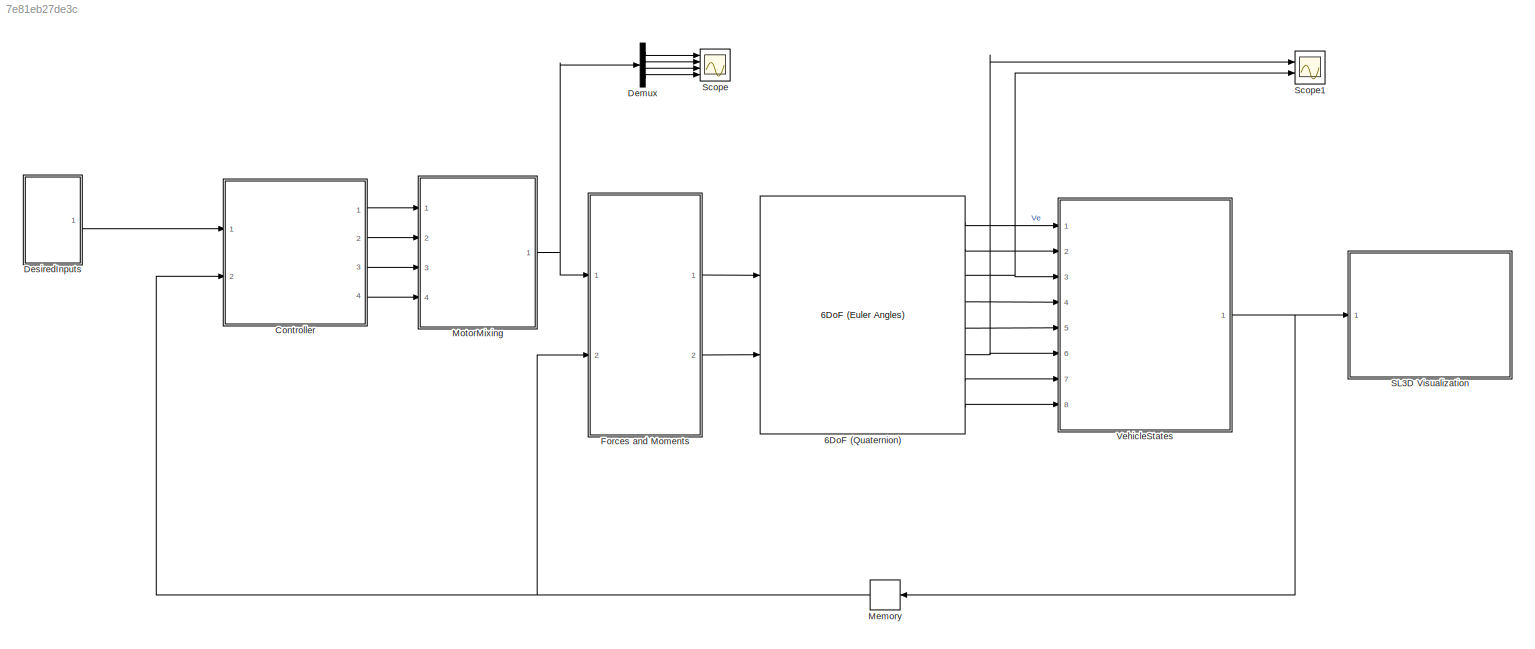
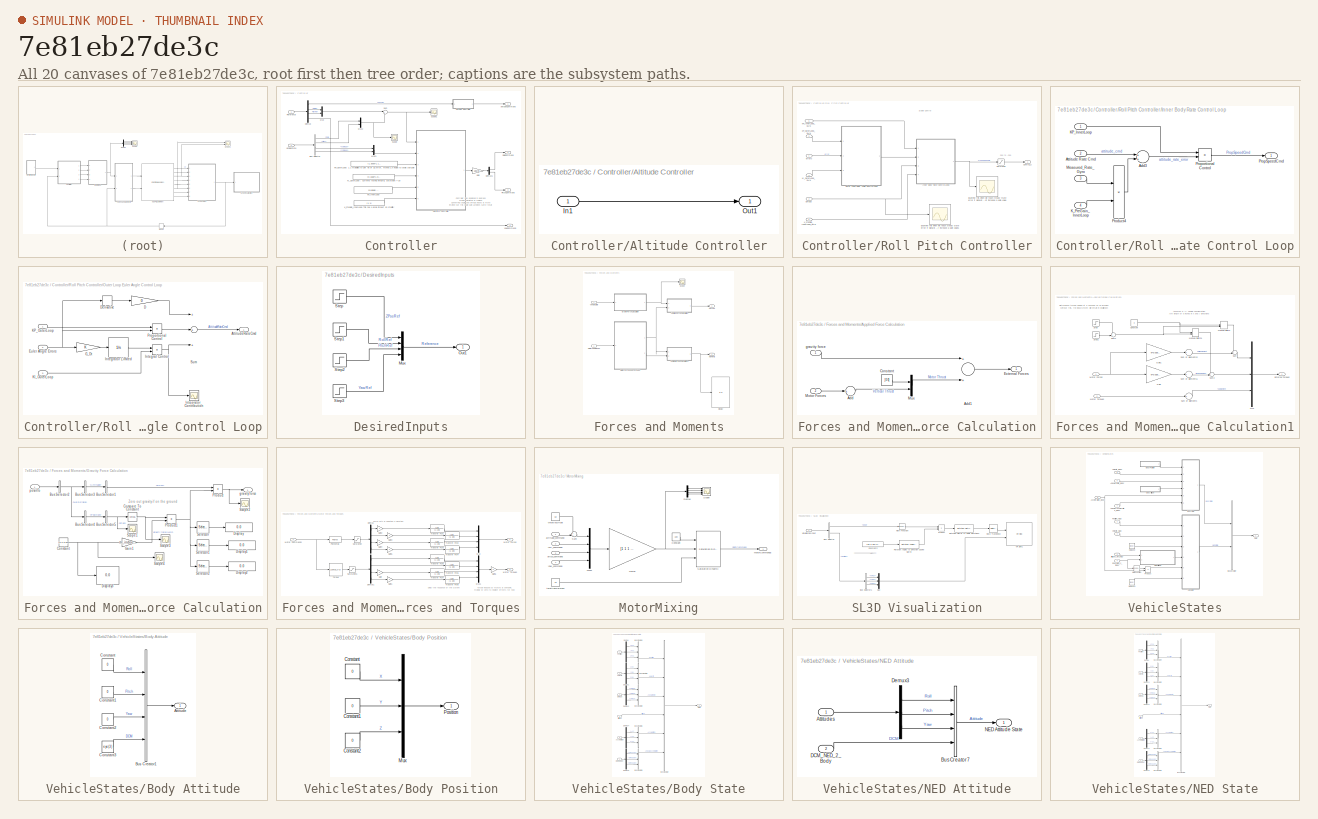
[diagram: thumbnail index - all 20 canvases of the model, root first then tree order]
MODEL slx_7e81eb27de3c
KIND model
CONFIG InitFcn = load SimpleDroneData
BLOCK [Reference] 6DoF (Quaternion)  REF=aerolibobsolete/6DoF (Euler Angles)
  Ports = [2, 8]
  SourceBlock = aerolibobsolete/6DoF (Euler Angles)
  SourceType = 6DoF EoM (Body Axis)
  Vm_0 = [0 0 0]
  eul_0 = [0 0 0]
  inertia = MomentInertiaTensor
  inertia_e = eye(3)
  inertia_f = eye(3)
  k_quat = 1.0
  mass_0 = Mass
  mass_e = 0
  mass_f = 0
  mtype = Fixed
  pm_0 = [0 0 0]
  rep = Quaternion
  units = Metric (MKS)
  xme_0 = [0 0 0]
BLOCK [SubSystem] Controller
  Ports = [2, 4]
  RequestExecContextInheritance = off
BLOCK [SubSystem] Controller/Altitude Controller
  Ports = [1, 1]
  RequestExecContextInheritance = off
BLOCK [Inport] Controller/Altitude Controller/In1
  IconDisplay = Port number
BLOCK [Outport] Controller/Altitude Controller/Out1
  IconDisplay = Port number
BLOCK [Outport] Controller/AltitudeCommand
  IconDisplay = Port number
BLOCK [BusSelector] Controller/Bus Selector
  OutputSignals = NEDState.Attitude.Roll,NEDState.Attitude.Pitch,BodyState.AngularRate.xOmega,BodyState.AngularRate.yOmega
  Ports = [1, 4]
BLOCK [Demux] Controller/Demux
  DisplayOption = bar
  Ports = [1, 4]
BLOCK [Demux] Controller/Demux1
  DisplayOption = bar
  Outputs = 2
  Ports = [1, 2]
BLOCK [Gain] Controller/Gain
  Gain = 180/pi
  OutDataTypeStr = Inherit: Inherit via internal rule
  ParamDataTypeStr = Inherit: Inherit via internal rule
  SaturateOnIntegerOverflow = off
BLOCK [Constant] Controller/KI_OuterLoop : Currently testing integral, saturation +-30
  Value = [0.1688*1.0    0.1688]*6
BLOCK [Constant] Controller/KP_InnerLoop
  Value = [0.8100    0.8100]*0.27
BLOCK [Constant] Controller/KP_OuterLoop: 1.1 multiplied to get rid of SS error, moved 2.6 inside to avoid yaw gain
  Value = [1.3500*1.1*3.6 1.3500*1.1*2.6 ]
BLOCK [Constant] Controller/K_PreGain_InnerLoop This has a large impact on stability
  Value = [1 1]
BLOCK [Mux] Controller/Mux
  DisplayOption = bar
  Inputs = 2
  Ports = [2, 1]
BLOCK [Mux] Controller/Mux2
  DisplayOption = bar
  Inputs = 2
  Ports = [2, 1]
BLOCK [Mux] Controller/Mux3
  DisplayOption = bar
  Inputs = 2
  Ports = [2, 1]
BLOCK [Outport] Controller/PitchCommand
  IconDisplay = Port number
  Port = 3
BLOCK [Inport] Controller/Reference
  IconDisplay = Port number
BLOCK [SubSystem] Controller/Roll Pitch Controller
  Ports = [6, 1]
  RequestExecContextInheritance = off
  TreatAsAtomicUnit = on
BLOCK [Outport] Controller/Roll Pitch Controller/Control_U
  IconDisplay = Port number
BLOCK [Scope] Controller/Roll Pitch Controller/Examine this when we reach steady state error if signal is abs(0)<1 then we need ot increase a gain value
  DataFormat = StructureWithTime
  Floating = off
  LimitDataPoints = off
  NumInputPorts = 1
  Ports = [1]
  SampleTime = 0
  SaveName = ScopeData7
  ShowLegends = off
  YMax = 4
  YMin = -6
BLOCK [Scope] Controller/Roll Pitch Controller/Examine this when we reach steady state error if signal is abs(0)<1 then we need ot increase a gain value1
  DataFormat = StructureWithTime
  Floating = off
  LimitDataPoints = off
  NumInputPorts = 1
  Ports = [1]
  SampleTime = 0
  ShowLegends = off
  YMax = 40
  YMin = -3.62958e-15
BLOCK [SubSystem] Controller/Roll Pitch Controller/Inner Body Rate Control Loop
  Ports = [4, 1]
  RequestExecContextInheritance = off
BLOCK [Sum] Controller/Roll Pitch Controller/Inner Body Rate Control Loop/Add3
  InputSameDT = off
  OutDataTypeStr = Inherit: Inherit via internal rule
  Ports = [2, 1]
  SaturateOnIntegerOverflow = off
BLOCK [Inport] Controller/Roll Pitch Controller/Inner Body Rate Control Loop/Attitude Rate Cmd
  IconDisplay = Port number
  Port = 2
BLOCK [Inport] Controller/Roll Pitch Controller/Inner Body Rate Control Loop/KP_InnerLoop
  IconDisplay = Port number
BLOCK [Inport] Controller/Roll Pitch Controller/Inner Body Rate Control Loop/K_PreGain_InnerLoop
  IconDisplay = Port number
  Port = 4
BLOCK [Inport] Controller/Roll Pitch Controller/Inner Body Rate Control Loop/Measured_Rate_Gyro
  IconDisplay = Port number
  Port = 3
BLOCK [Product] Controller/Roll Pitch Controller/Inner Body Rate Control Loop/Product4
  InputSameDT = off
  OutDataTypeStr = Inherit: Inherit via internal rule
  Ports = [2, 1]
  SaturateOnIntegerOverflow = off
BLOCK [Outport] Controller/Roll Pitch Controller/Inner Body Rate Control Loop/PropSpeedCmd
  IconDisplay = Port number
BLOCK [Product] Controller/Roll Pitch Controller/Inner Body Rate Control Loop/Proportional Control
  InputSameDT = off
  OutDataTypeStr = Inherit: Inherit via internal rule
  Ports = [2, 1]
  SaturateOnIntegerOverflow = off
BLOCK [Inport] Controller/Roll Pitch Controller/KI_OuterLoop_GAIN
  IconDisplay = Port number
  Port = 4
BLOCK [Inport] Controller/Roll Pitch Controller/KP_InnerLoop_GAIN
  IconDisplay = Port number
  Port = 5
BLOCK [Inport] Controller/Roll Pitch Controller/KP_OuterLoop_GAIN
  IconDisplay = Port number
  Port = 3
BLOCK [Inport] Controller/Roll Pitch Controller/K_PreGain_InnerLoop_GAIN
  IconDisplay = Port number
  Port = 6
BLOCK [Inport] Controller/Roll Pitch Controller/Omega
  IconDisplay = Port number
  Port = 2
BLOCK [SubSystem] Controller/Roll Pitch Controller/Outer Loop Euler Angle Control Loop
  Ports = [3, 1]
  RequestExecContextInheritance = off
BLOCK [Outport] Controller/Roll Pitch Controller/Outer Loop Euler Angle Control Loop/AttitudeRateCmd
  IconDisplay = Port number
BLOCK [Gain] Controller/Roll Pitch Controller/Outer Loop Euler Angle Control Loop/D
  Gain = 0
  OutDataTypeStr = Inherit: Inherit via internal rule
  ParamDataTypeStr = Inherit: Inherit via internal rule
  SaturateOnIntegerOverflow = off
BLOCK [Derivative] Controller/Roll Pitch Controller/Outer Loop Euler Angle Control Loop/Derivative
BLOCK [Inport] Controller/Roll Pitch Controller/Outer Loop Euler Angle Control Loop/Euler Angle Errors
  IconDisplay = Port number
  Port = 2
BLOCK [Gain] Controller/Roll Pitch Controller/Outer Loop Euler Angle Control Loop/G_Dt
  OutDataTypeStr = double
  ParamDataTypeStr = Inherit: Inherit via internal rule
  SaturateOnIntegerOverflow = off
BLOCK [Product] Controller/Roll Pitch Controller/Outer Loop Euler Angle Control Loop/Integral Control
  InputSameDT = off
  OutDataTypeStr = Inherit: Inherit via internal rule
  Ports = [2, 1]
  SaturateOnIntegerOverflow = off
BLOCK [Integrator] Controller/Roll Pitch Controller/Outer Loop Euler Angle Control Loop/Integrator Limited
  LimitOutput = on
  LowerSaturationLimit = [-30 -30]
  Ports = [1, 1]
  UpperSaturationLimit = [30 30]
BLOCK [Scope] Controller/Roll Pitch Controller/Outer Loop Euler Angle Control Loop/Integrator_Contribution
  DataFormat = StructureWithTime
  Floating = off
  LimitDataPoints = off
  NumInputPorts = 1
  Ports = [1]
  SampleTime = 0
  SaveName = ScopeData6
  ShowLegends = off
  YMax = 37.5
  YMin = 0
BLOCK [Inport] Controller/Roll Pitch Controller/Outer Loop Euler Angle Control Loop/KI_OuterLoop
  IconDisplay = Port number
  Port = 3
BLOCK [Inport] Controller/Roll Pitch Controller/Outer Loop Euler Angle Control Loop/KP_OuterLoop
  IconDisplay = Port number
BLOCK [Product] Controller/Roll Pitch Controller/Outer Loop Euler Angle Control Loop/Proportional Control
  InputSameDT = off
  OutDataTypeStr = Inherit: Inherit via internal rule
  Ports = [2, 1]
  SaturateOnIntegerOverflow = off
BLOCK [Sum] Controller/Roll Pitch Controller/Outer Loop Euler Angle Control Loop/Sum
  InputSameDT = off
  Inputs = +++
  OutDataTypeStr = Inherit: Inherit via internal rule
  Ports = [3, 1]
  SaturateOnIntegerOverflow = off
BLOCK [Saturate] Controller/Roll Pitch Controller/Saturation
  AttributesFormatString = %<LowerLimit>\nto\n%<UpperLimit>
  InputPortMap = u0
  LowerLimit = -250
  OutDataTypeStr = Inherit: Inherit via back propagation
  Ports = [1, 1]
  UpperLimit = 250
BLOCK [Inport] Controller/Roll Pitch Controller/errors
  IconDisplay = Port number
BLOCK [Outport] Controller/RollCommand
  IconDisplay = Port number
  Port = 2
BLOCK [Scope] Controller/Scope
  Floating = off
  LimitDataPoints = off
  NumInputPorts = 1
  Ports = [1]
  SaveName = ScopeData3
  ShowLegends = off
BLOCK [Scope] Controller/Scope1
  Floating = off
  LimitDataPoints = off
  NumInputPorts = 1
  Ports = [1]
  SaveName = ScopeData11
  ShowLegends = off
BLOCK [Sum] Controller/Sum
  IconShape = round
  InputSameDT = off
  Inputs = |++
  OutDataTypeStr = Inherit: Inherit via internal rule
  Ports = [2, 1]
  SaturateOnIntegerOverflow = off
BLOCK [Inport] Controller/VehicleState
  IconDisplay = Port number
  Port = 2
BLOCK [Outport] Controller/YawCommand
  IconDisplay = Port number
  Port = 4
BLOCK [Demux] Demux
  DisplayOption = bar
  Ports = [1, 4]
BLOCK [SubSystem] DesiredInputs
  Ports = [0, 1]
  RequestExecContextInheritance = off
BLOCK [Mux] DesiredInputs/Mux
  DisplayOption = bar
  Ports = [4, 1]
BLOCK [Outport] DesiredInputs/Out1
  IconDisplay = Port number
BLOCK [Step] DesiredInputs/Step
  After = -1
  SampleTime = 0
  Time = 3
BLOCK [Step] DesiredInputs/Step1
  After = 0
  SampleTime = 0
  Time = 2
BLOCK [Step] DesiredInputs/Step2
  After = 0
  SampleTime = 0
  Time = 5
BLOCK [Step] DesiredInputs/Step3
  After = 0
  SampleTime = 0
  Time = 5
BLOCK [SubSystem] Forces and Moments
  Ports = [2, 2]
  RequestExecContextInheritance = off
  TreatAsAtomicUnit = on
BLOCK [SubSystem] Forces and Moments/Applied Force Calculation
  Ports = [2, 1]
  RequestExecContextInheritance = off
BLOCK [Sum] Forces and Moments/Applied Force Calculation/Add
  InputSameDT = off
  Inputs = +
  OutDataTypeStr = Inherit: Inherit via internal rule
  Ports = [1, 1]
  SaturateOnIntegerOverflow = off
BLOCK [Sum] Forces and Moments/Applied Force Calculation/Add1
  InputSameDT = off
  OutDataTypeStr = Inherit: Inherit via internal rule
  Ports = [2, 1]
  SaturateOnIntegerOverflow = off
BLOCK [Constant] Forces and Moments/Applied Force Calculation/Constant
  Value = [0 0]
BLOCK [Outport] Forces and Moments/Applied Force Calculation/External Forces
  IconDisplay = Port number
BLOCK [Inport] Forces and Moments/Applied Force Calculation/Motor Forces
  IconDisplay = Port number
  Port = 2
BLOCK [Mux] Forces and Moments/Applied Force Calculation/Mux
  DisplayOption = bar
  Inputs = 2
  Ports = [2, 1]
BLOCK [Inport] Forces and Moments/Applied Force Calculation/gravity force
  IconDisplay = Port number
BLOCK [SubSystem] Forces and Moments/Applied torque Calculation1
  Ports = [2, 1]
  RequestExecContextInheritance = off
BLOCK [Constant] Forces and Moments/Applied torque Calculation1/Constant
  Value = 0
BLOCK [Outport] Forces and Moments/Applied torque Calculation1/External Torques
  IconDisplay = Port number
BLOCK [Gain] Forces and Moments/Applied torque Calculation1/Gain
  Gain = 5*0.0254*[1 1 -1 -1]
  OutDataTypeStr = Inherit: Inherit via internal rule
  ParamDataTypeStr = Inherit: Inherit via internal rule
  SaturateOnIntegerOverflow = off
BLOCK [Gain] Forces and Moments/Applied torque Calculation1/Gain1
  Gain = 5*0.0254*[1 -1 -1 1]
  OutDataTypeStr = Inherit: Inherit via internal rule
  ParamDataTypeStr = Inherit: Inherit via internal rule
  SaturateOnIntegerOverflow = off
BLOCK [ManualSwitch] Forces and Moments/Applied torque Calculation1/Manual Switch
  CurrentSetting = 0
BLOCK [ManualSwitch] Forces and Moments/Applied torque Calculation1/Manual Switch1
  CurrentSetting = 0
BLOCK [Inport] Forces and Moments/Applied torque Calculation1/Motor Forces
  IconDisplay = Port number
BLOCK [Inport] Forces and Moments/Applied torque Calculation1/Motor Torques
  IconDisplay = Port number
  Port = 2
BLOCK [Mux] Forces and Moments/Applied torque Calculation1/Mux
  DisplayOption = bar
  Inputs = 3
  Ports = [3, 1]
BLOCK [Step] Forces and Moments/Applied torque Calculation1/Step
  SampleTime = 0
  Time = 5
BLOCK [Step] Forces and Moments/Applied torque Calculation1/Step1
  After = -1
  SampleTime = 0
  Time = 5.01
BLOCK [Sum] Forces and Moments/Applied torque Calculation1/Sum
  IconShape = round
  InputSameDT = off
  Inputs = ++|
  OutDataTypeStr = Inherit: Inherit via internal rule
  Ports = [2, 1]
  SaturateOnIntegerOverflow = off
BLOCK [Sum] Forces and Moments/Applied torque Calculation1/Sum of Elements
  InputSameDT = off
  Inputs = +
  OutDataTypeStr = Inherit: Inherit via internal rule
  Ports = [1, 1]
  SaturateOnIntegerOverflow = off
BLOCK [Sum] Forces and Moments/Applied torque Calculation1/Sum of Elements1
  InputSameDT = off
  Inputs = +
  OutDataTypeStr = Inherit: Inherit via internal rule
  Ports = [1, 1]
  SaturateOnIntegerOverflow = off
BLOCK [Sum] Forces and Moments/Applied torque Calculation1/Sum of Elements2
  InputSameDT = off
  Inputs = +
  OutDataTypeStr = Inherit: Inherit via internal rule
  Ports = [1, 1]
  SaturateOnIntegerOverflow = off
BLOCK [Sum] Forces and Moments/Applied torque Calculation1/Sum1
  IconShape = round
  InputSameDT = off
  Inputs = ++|
  OutDataTypeStr = Inherit: Inherit via internal rule
  Ports = [2, 1]
  SaturateOnIntegerOverflow = off
BLOCK [Sum] Forces and Moments/Applied torque Calculation1/Sum2
  IconShape = round
  InputSameDT = off
  Inputs = ++|
  OutDataTypeStr = Inherit: Inherit via internal rule
  Ports = [2, 1]
  SaturateOnIntegerOverflow = off
BLOCK [Display] Forces and Moments/Display
  Decimation = 1
  Ports = [1]
BLOCK [Outport] Forces and Moments/Forces
  IconDisplay = Port number
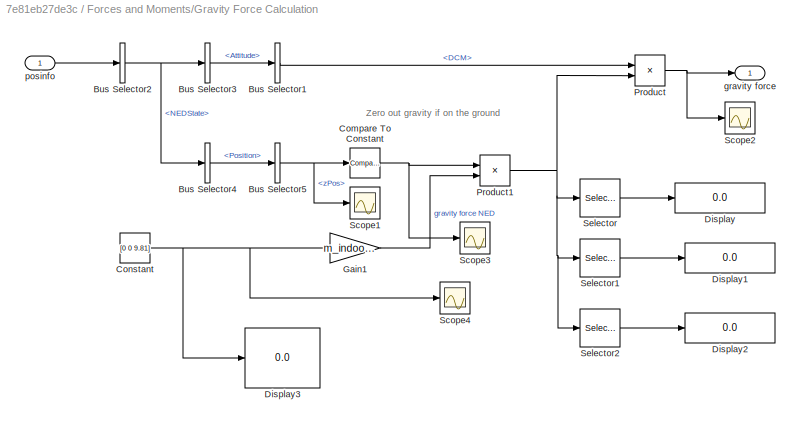
BLOCK [SubSystem] Forces and Moments/Gravity Force Calculation
  Ports = [1, 1]
  RequestExecContextInheritance = off
BLOCK [BusSelector] Forces and Moments/Gravity Force Calculation/Bus Selector1
  OutputSignals = DCM
  Ports = [1, 1]
BLOCK [BusSelector] Forces and Moments/Gravity Force Calculation/Bus Selector2
  OutputSignals = NEDState
  Ports = [1, 1]
BLOCK [BusSelector] Forces and Moments/Gravity Force Calculation/Bus Selector3
  OutputSignals = Attitude
  Ports = [1, 1]
BLOCK [BusSelector] Forces and Moments/Gravity Force Calculation/Bus Selector4
  OutputSignals = Position
  Ports = [1, 1]
BLOCK [BusSelector] Forces and Moments/Gravity Force Calculation/Bus Selector5
  OutputSignals = zPos
  Ports = [1, 1]
BLOCK [Reference] Forces and Moments/Gravity Force Calculation/Compare To Constant  REF=simulink/Logic and Bit
Operations/Compare
To Constant
  OutDataTypeStr = boolean
  Ports = [1, 1]
  SourceBlock = simulink/Logic and Bit\nOperations/Compare\nTo Constant
  SourceType = Compare To Constant
  ZeroCross = on
  const = 0.0
  relop = <
BLOCK [Constant] Forces and Moments/Gravity Force Calculation/Constant
  Value = [0 0 9.81]
BLOCK [Display] Forces and Moments/Gravity Force Calculation/Display
  Decimation = 1
  Ports = [1]
BLOCK [Display] Forces and Moments/Gravity Force Calculation/Display1
  Decimation = 1
  Ports = [1]
BLOCK [Display] Forces and Moments/Gravity Force Calculation/Display2
  Decimation = 1
  Ports = [1]
BLOCK [Display] Forces and Moments/Gravity Force Calculation/Display3
  Decimation = 1
  Ports = [1]
BLOCK [Gain] Forces and Moments/Gravity Force Calculation/Gain1
  Gain = m_indoorHull
  OutDataTypeStr = Inherit: Inherit via internal rule
  ParamDataTypeStr = Inherit: Inherit via internal rule
  SaturateOnIntegerOverflow = off
BLOCK [Product] Forces and Moments/Gravity Force Calculation/Product
  InputSameDT = off
  Multiplication = Matrix(*)
  OutDataTypeStr = Inherit: Inherit via internal rule
  Ports = [2, 1]
  RndMeth = Floor
  SaturateOnIntegerOverflow = off
BLOCK [Product] Forces and Moments/Gravity Force Calculation/Product1
  InputSameDT = off
  OutDataTypeStr = Inherit: Inherit via internal rule
  Ports = [2, 1]
  RndMeth = Floor
  SaturateOnIntegerOverflow = off
BLOCK [Scope] Forces and Moments/Gravity Force Calculation/Scope1
  DataFormat = StructureWithTime
  Floating = off
  LimitDataPoints = off
  NumInputPorts = 1
  Ports = [1]
  SampleTime = 0
  SaveName = ScopeData8
  ShowLegends = off
BLOCK [Scope] Forces and Moments/Gravity Force Calculation/Scope2
  DataFormat = StructureWithTime
  Floating = off
  LimitDataPoints = off
  NumInputPorts = 1
  Ports = [1]
  SampleTime = 0
  SaveName = ScopeData7
  ShowLegends = off
BLOCK [Scope] Forces and Moments/Gravity Force Calculation/Scope3
  DataFormat = StructureWithTime
  Floating = off
  LimitDataPoints = off
  NumInputPorts = 1
  Ports = [1]
  SampleTime = 0
  SaveName = ScopeData9
  ShowLegends = off
BLOCK [Scope] Forces and Moments/Gravity Force Calculation/Scope4
  DataFormat = StructureWithTime
  Floating = off
  LimitDataPoints = off
  NumInputPorts = 1
  Ports = [1]
  SampleTime = 0
  SaveName = ScopeData10
  ShowLegends = off
BLOCK [Selector] Forces and Moments/Gravity Force Calculation/Selector
  Indices = [1]
  InputPortWidth = 3
  Ports = [1, 1]
BLOCK [Selector] Forces and Moments/Gravity Force Calculation/Selector1
  Indices = [2]
  InputPortWidth = 3
  Ports = [1, 1]
BLOCK [Selector] Forces and Moments/Gravity Force Calculation/Selector2
  Indices = [3]
  InputPortWidth = 3
  Ports = [1, 1]
BLOCK [Outport] Forces and Moments/Gravity Force Calculation/gravity force
  IconDisplay = Port number
BLOCK [Inport] Forces and Moments/Gravity Force Calculation/posinfo
  IconDisplay = Port number
BLOCK [Outport] Forces and Moments/Moments
  IconDisplay = Port number
  Port = 2
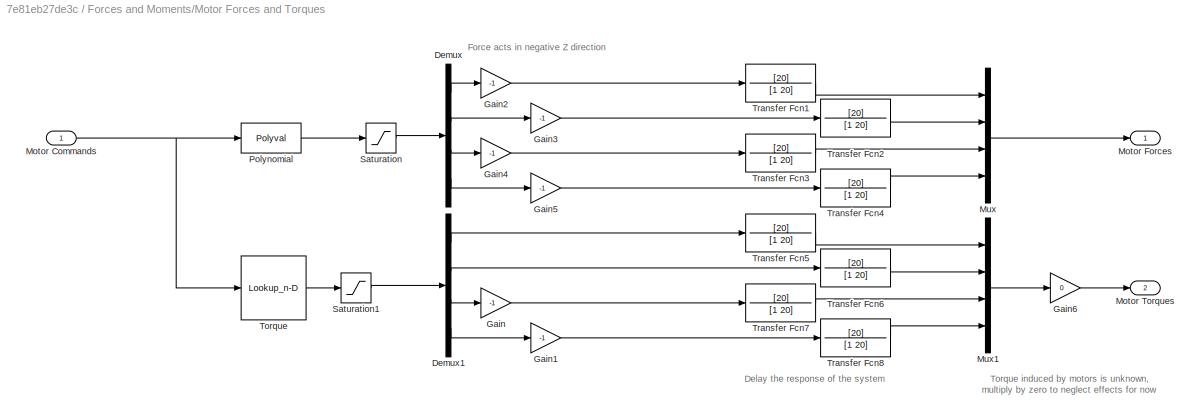
BLOCK [SubSystem] Forces and Moments/Motor Forces and Torques
  Ports = [1, 2]
  RequestExecContextInheritance = off
BLOCK [Demux] Forces and Moments/Motor Forces and Torques/Demux
  DisplayOption = bar
  Ports = [1, 4]
BLOCK [Demux] Forces and Moments/Motor Forces and Torques/Demux1
  DisplayOption = bar
  Ports = [1, 4]
BLOCK [Gain] Forces and Moments/Motor Forces and Torques/Gain
  Gain = -1
  OutDataTypeStr = Inherit: Inherit via internal rule
  ParamDataTypeStr = Inherit: Inherit via internal rule
  SaturateOnIntegerOverflow = off
BLOCK [Gain] Forces and Moments/Motor Forces and Torques/Gain1
  Gain = -1
  OutDataTypeStr = Inherit: Inherit via internal rule
  ParamDataTypeStr = Inherit: Inherit via internal rule
  SaturateOnIntegerOverflow = off
BLOCK [Gain] Forces and Moments/Motor Forces and Torques/Gain2
  Gain = -1
  OutDataTypeStr = Inherit: Inherit via internal rule
  ParamDataTypeStr = Inherit: Inherit via internal rule
  SaturateOnIntegerOverflow = off
BLOCK [Gain] Forces and Moments/Motor Forces and Torques/Gain3
  Gain = -1
  OutDataTypeStr = Inherit: Inherit via internal rule
  ParamDataTypeStr = Inherit: Inherit via internal rule
  SaturateOnIntegerOverflow = off
BLOCK [Gain] Forces and Moments/Motor Forces and Torques/Gain4
  Gain = -1
  OutDataTypeStr = Inherit: Inherit via internal rule
  ParamDataTypeStr = Inherit: Inherit via internal rule
  SaturateOnIntegerOverflow = off
BLOCK [Gain] Forces and Moments/Motor Forces and Torques/Gain5
  Gain = -1
  OutDataTypeStr = Inherit: Inherit via internal rule
  ParamDataTypeStr = Inherit: Inherit via internal rule
  SaturateOnIntegerOverflow = off
BLOCK [Gain] Forces and Moments/Motor Forces and Torques/Gain6
  Gain = 0
  OutDataTypeStr = Inherit: Inherit via internal rule
  ParamDataTypeStr = Inherit: Inherit via internal rule
  SaturateOnIntegerOverflow = off
BLOCK [Inport] Forces and Moments/Motor Forces and Torques/Motor Commands
  IconDisplay = Port number
BLOCK [Outport] Forces and Moments/Motor Forces and Torques/Motor Forces
  IconDisplay = Port number
BLOCK [Outport] Forces and Moments/Motor Forces and Torques/Motor Torques
  IconDisplay = Port number
  Port = 2
BLOCK [Mux] Forces and Moments/Motor Forces and Torques/Mux
  DisplayOption = bar
  Ports = [4, 1]
BLOCK [Mux] Forces and Moments/Motor Forces and Torques/Mux1
  DisplayOption = bar
  Ports = [4, 1]
BLOCK [Polyval] Forces and Moments/Motor Forces and Torques/Polynomial
  Coefs = motorCoeffs
BLOCK [Saturate] Forces and Moments/Motor Forces and Torques/Saturation
  InputPortMap = u0
  LowerLimit = 0
  Ports = [1, 1]
  UpperLimit = 8.1
BLOCK [Saturate] Forces and Moments/Motor Forces and Torques/Saturation1
  InputPortMap = u0
  LowerLimit = 0
  Ports = [1, 1]
  UpperLimit = 0.189
BLOCK [Lookup_n-D] Forces and Moments/Motor Forces and Torques/Torque
  BreakpointsForDimension1 = [1160  1300  1389  1500   1600  1720  1824]
  ExtrapMethod = Clip
  NumberOfTableDimensions = 1
  Ports = [1, 1]
  RndMeth = Simplest
  Table = 0.00980665*0.3048*[0        10    20    35     42    58    63]
  UseLastTableValue = on
BLOCK [TransferFcn] Forces and Moments/Motor Forces and Torques/Transfer Fcn1
  Denominator = [1 20]
  Numerator = [20]
BLOCK [TransferFcn] Forces and Moments/Motor Forces and Torques/Transfer Fcn2
  Denominator = [1 20]
  Numerator = [20]
BLOCK [TransferFcn] Forces and Moments/Motor Forces and Torques/Transfer Fcn3
  Denominator = [1 20]
  Numerator = [20]
BLOCK [TransferFcn] Forces and Moments/Motor Forces and Torques/Transfer Fcn4
  Denominator = [1 20]
  Numerator = [20]
BLOCK [TransferFcn] Forces and Moments/Motor Forces and Torques/Transfer Fcn5
  Denominator = [1 20]
  Numerator = [20]
BLOCK [TransferFcn] Forces and Moments/Motor Forces and Torques/Transfer Fcn6
  Denominator = [1 20]
  Numerator = [20]
BLOCK [TransferFcn] Forces and Moments/Motor Forces and Torques/Transfer Fcn7
  Denominator = [1 20]
  Numerator = [20]
BLOCK [TransferFcn] Forces and Moments/Motor Forces and Torques/Transfer Fcn8
  Denominator = [1 20]
  Numerator = [20]
BLOCK [Inport] Forces and Moments/MotorCommands
  IconDisplay = Port number
BLOCK [Scope] Forces and Moments/Scope
  DataFormat = StructureWithTime
  Floating = off
  LimitDataPoints = off
  NumInputPorts = 1
  Ports = [1]
  SampleTime = 0
  SaveName = ScopeData4
  ShowLegends = off
BLOCK [Inport] Forces and Moments/VehicleState
  IconDisplay = Port number
  Port = 2
BLOCK [Memory] Memory
BLOCK [SubSystem] MotorMixing
  Ports = [4, 1]
  RequestExecContextInheritance = off
BLOCK [Constant] MotorMixing/Constant
  Value = 100
BLOCK [Demux] MotorMixing/Demux
  DisplayOption = bar
  Ports = [1, 4]
BLOCK [Gain] MotorMixing/Gain3
  Gain = [1 1 1 -1; 1 -1 1 1; 1 -1 -1 -1; 1 1 -1 1]
  Multiplication = Matrix(K*u)
  OutDataTypeStr = Inherit: Inherit via internal rule
  ParamDataTypeStr = int16
  SaturateOnIntegerOverflow = off
BLOCK [Outport] MotorMixing/MotorCommands
  IconDisplay = Port number
BLOCK [Mux] MotorMixing/Mux1
  DisplayOption = bar
  Ports = [4, 1]
BLOCK [Reference] MotorMixing/Saturation Dynamic  REF=simulink/Discontinuities/Saturation
Dynamic
  DoSatur = off
  LockScale = off
  OutDataType = fixdt(1, 16)
  OutDataTypeStr = Inherit: Same as second input
  OutMax = []
  OutMin = []
  OutScaling = 2^-10
  OutputDataTypeScalingMode = Same as second input
  Ports = [3, 1]
  RndMeth = Floor
  SourceBlock = simulink/Discontinuities/Saturation\nDynamic
  SourceType = Saturation Dynamic
BLOCK [Scope] MotorMixing/Scope
  Floating = off
  LimitDataPoints = off
  NumInputPorts = 4
  Ports = [4]
  SaveName = ScopeData2
  ShowLegends = off
  TimeRange = 100
  YMax = 5~5~5~5
  YMin = -5~-5~-5~-5
BLOCK [Sum] MotorMixing/Sum
  IconShape = round
  InputSameDT = off
  Inputs = ++|
  OutDataTypeStr = Inherit: Inherit via internal rule
  Ports = [2, 1]
  SaturateOnIntegerOverflow = off
BLOCK [Inport] MotorMixing/altitude_command
  IconDisplay = Port number
BLOCK [Inport] MotorMixing/pitch_command
  IconDisplay = Port number
  Port = 3
BLOCK [Inport] MotorMixing/roll_command
  IconDisplay = Port number
  Port = 2
BLOCK [Constant] MotorMixing/throttleMinimum
  Value = 10
BLOCK [Constant] MotorMixing/throttleOffset
  Value = 50
BLOCK [Inport] MotorMixing/yaw_command
  IconDisplay = Port number
  Port = 4
BLOCK [SubSystem] SL3D Visualization
  Ports = [1]
  RequestExecContextInheritance = off
BLOCK [BusSelector] SL3D Visualization/Bus Selector
  OutputSignals = NEDState.Attitude.DCM,NEDState.Position
  Ports = [1, 2]
BLOCK [BusSelector] SL3D Visualization/Bus Selector1
  OutputSignals = xPos,yPos,zPos
  Ports = [1, 3]
BLOCK [Constant] SL3D Visualization/Constant2
  Value = [90 0 90]*pi/180
BLOCK [Math] SL3D Visualization/Math Function
  Operator = transpose
  Ports = [1, 1]
BLOCK [Mux] SL3D Visualization/Mux
  DisplayOption = bar
  Inputs = 3
  Ports = [3, 1]
BLOCK [Product] SL3D Visualization/Product
  InputSameDT = off
  Multiplication = Matrix(*)
  OutDataTypeStr = Inherit: Inherit via internal rule
  Ports = [2, 1]
  RndMeth = Floor
  SaturateOnIntegerOverflow = off
BLOCK [RateTransition] SL3D Visualization/Rate Transition2
  Commented = through
BLOCK [Reference] SL3D Visualization/Rotation Angles to Direction Cosine Matrix  REF=aerolibtransform2/Rotation Angles to
Direction Cosine Matrix
  AttributesFormatString = Rotation Order: %<rotationOrder>
  Ports = [1, 1]
  SourceBlock = aerolibtransform2/Rotation Angles to\nDirection Cosine Matrix
  SourceType = Ang2DCM
  rotationOrder = XYZ
BLOCK [Reference] SL3D Visualization/Rotation Matrix to VRML Rotation1  REF=vrlib/Utilities/Rotation Matrix
to VRML Rotation
  Ports = [1, 1]
  SourceBlock = vrlib/Utilities/Rotation Matrix\nto VRML Rotation
  SourceType = Rotation Matrix to VRML Rotation
  maxzero = 1e-12
BLOCK [Reference] SL3D Visualization/VR Sink1  REF=vrlib/VR Sink
  AllowVariableSize = off
  AutoView = off
  FieldsWritten = Drone.rotation.4.1.1.double#Drone.translation.3.1.1.double
  InstantiateOnLoad = on
  Ports = [2]
  RemoteChange = off
  RemoteView = off
  SampleTime = -1
  SourceBlock = vrlib/VR Sink
  SourceType = Virtual Reality Sink
  VideoDimensions = []
  ViewEnable = on
  WorldFileName = myDrone3.wrl
BLOCK [Inport] SL3D Visualization/VisualizationInput
  IconDisplay = Port number
BLOCK [Scope] Scope
  Floating = off
  LimitDataPoints = off
  NumInputPorts = 4
  Ports = [4]
  SaveName = ScopeData1
  ShowLegends = off
  YMax = 5~5~5~5
  YMin = -5~-5~-5~-5
  ZoomMode = xonly
BLOCK [Scope] Scope1
  Floating = off
  LimitDataPoints = off
  NumInputPorts = 2
  Ports = [2]
  SaveName = ScopeData5
  ShowLegends = off
  YMax = 5~5
  YMin = -5~-5
BLOCK [SubSystem] VehicleStates
  Ports = [8, 1]
  RequestExecContextInheritance = off
BLOCK [Inport] VehicleStates/Acceleration_Body
  IconDisplay = Port number
  Port = 8
BLOCK [Inport] VehicleStates/AngularAcceleration_Body
  IconDisplay = Port number
  Port = 7
BLOCK [Inport] VehicleStates/AngularRate_Body
  IconDisplay = Port number
  Port = 6
BLOCK [Inport] VehicleStates/Attitudes_wrt_NED
  IconDisplay = Port number
  Port = 3
BLOCK [SubSystem] VehicleStates/Body Attitude
  Ports = [0, 1]
  RequestExecContextInheritance = off
BLOCK [Outport] VehicleStates/Body Attitude/Attitude
  IconDisplay = Port number
BLOCK [BusCreator] VehicleStates/Body Attitude/Bus Creator1
  DisplayOption = bar
  NonVirtualBus = on
  OutDataTypeStr = Bus: AttitudeBus
  Ports = [4, 1]
BLOCK [Constant] VehicleStates/Body Attitude/Constant
  Value = 0
BLOCK [Constant] VehicleStates/Body Attitude/Constant1
  Value = 0
BLOCK [Constant] VehicleStates/Body Attitude/Constant2
  Value = 0
BLOCK [Constant] VehicleStates/Body Attitude/Constant3
  Value = eye(3)
BLOCK [SubSystem] VehicleStates/Body Position
  Ports = [0, 1]
  RequestExecContextInheritance = off
BLOCK [Constant] VehicleStates/Body Position/Constant
  Value = 0
BLOCK [Constant] VehicleStates/Body Position/Constant1
  Value = 0
BLOCK [Constant] VehicleStates/Body Position/Constant2
  Value = 0
BLOCK [Mux] VehicleStates/Body Position/Mux
  DisplayOption = bar
  Inputs = 3
  Ports = [3, 1]
BLOCK [Outport] VehicleStates/Body Position/Position
  IconDisplay = Port number
BLOCK [SubSystem] VehicleStates/Body State
  Ports = [6, 1]
  RequestExecContextInheritance = off
BLOCK [Inport] VehicleStates/Body State/Acceleration
  IconDisplay = Port number
  Port = 5
BLOCK [Inport] VehicleStates/Body State/Attitude
  IconDisplay = Port number
  Port = 4
BLOCK [BusCreator] VehicleStates/Body State/Bus Creator2
  DisplayOption = bar
  Inputs = 6
  NonVirtualBus = on
  OutDataTypeStr = Bus: States
  Ports = [6, 1]
BLOCK [BusCreator] VehicleStates/Body State/Bus Creator4
  DisplayOption = bar
  Inputs = 3
  NonVirtualBus = on
  OutDataTypeStr = Bus: PositionBus
  Ports = [3, 1]
BLOCK [BusCreator] VehicleStates/Body State/Bus Creator5
  DisplayOption = bar
  Inputs = 3
  NonVirtualBus = on
  OutDataTypeStr = Bus: VelocityBus
  Ports = [3, 1]
BLOCK [BusCreator] VehicleStates/Body State/Bus Creator6
  DisplayOption = bar
  Inputs = 3
  NonVirtualBus = on
  OutDataTypeStr = Bus: AccelerationBus
  Ports = [3, 1]
BLOCK [BusCreator] VehicleStates/Body State/Bus Creator8
  DisplayOption = bar
  Inputs = 3
  NonVirtualBus = on
  OutDataTypeStr = Bus: AngularRateBus
  Ports = [3, 1]
BLOCK [BusCreator] VehicleStates/Body State/Bus Creator9
  DisplayOption = bar
  Inputs = 3
  NonVirtualBus = on
  OutDataTypeStr = Bus: AngularAccelerationBus
  Ports = [3, 1]
BLOCK [Demux] VehicleStates/Body State/Demux
  DisplayOption = bar
  Outputs = 3
  Ports = [1, 3]
BLOCK [Demux] VehicleStates/Body State/Demux1
  DisplayOption = bar
  Outputs = 3
  Ports = [1, 3]
BLOCK [Demux] VehicleStates/Body State/Demux2
  DisplayOption = bar
  Outputs = 3
  Ports = [1, 3]
BLOCK [Demux] VehicleStates/Body State/Demux4
  DisplayOption = bar
  Outputs = 3
  Ports = [1, 3]
BLOCK [Demux] VehicleStates/Body State/Demux5
  DisplayOption = bar
  Outputs = 3
  Ports = [1, 3]
BLOCK [Inport] VehicleStates/Body State/Omega
  IconDisplay = Port number
  Port = 3
BLOCK [Inport] VehicleStates/Body State/OmegaDot
  IconDisplay = Port number
  Port = 6
BLOCK [Inport] VehicleStates/Body State/Position
  IconDisplay = Port number
BLOCK [Outport] VehicleStates/Body State/State
  IconDisplay = Port number
  OutDataTypeStr = Bus: States
BLOCK [Inport] VehicleStates/Body State/Velocity
  IconDisplay = Port number
  Port = 2
BLOCK [BusCreator] VehicleStates/Bus Creator
  DisplayOption = bar
  Inputs = 2
  NonVirtualBus = on
  OutDataTypeStr = Bus: VehicleStates
  Ports = [2, 1]
BLOCK [Inport] VehicleStates/DCM_NED_2_Body
  IconDisplay = Port number
  Port = 4
BLOCK [Math] VehicleStates/Math Function
  Operator = transpose
  Ports = [1, 1]
BLOCK [SubSystem] VehicleStates/NED Attitude
  Ports = [2, 1]
  RequestExecContextInheritance = off
BLOCK [Inport] VehicleStates/NED Attitude/Attitudes
  IconDisplay = Port number
BLOCK [BusCreator] VehicleStates/NED Attitude/Bus Creator7
  DisplayOption = bar
  NonVirtualBus = on
  OutDataTypeStr = Bus: AttitudeBus
  Ports = [4, 1]
BLOCK [Inport] VehicleStates/NED Attitude/DCM_NED_2_Body
  IconDisplay = Port number
  Port = 2
BLOCK [Demux] VehicleStates/NED Attitude/Demux3
  DisplayOption = bar
  Outputs = 3
  Ports = [1, 3]
BLOCK [Outport] VehicleStates/NED Attitude/NED Attitude State
  IconDisplay = Port number
BLOCK [SubSystem] VehicleStates/NED State
  Ports = [6, 1]
  RequestExecContextInheritance = off
BLOCK [Inport] VehicleStates/NED State/Acceleration
  IconDisplay = Port number
  Port = 5
BLOCK [Inport] VehicleStates/NED State/Attitude
  IconDisplay = Port number
  Port = 4
BLOCK [BusCreator] VehicleStates/NED State/Bus Creator2
  DisplayOption = bar
  Inputs = 6
  NonVirtualBus = on
  OutDataTypeStr = Bus: States
  Ports = [6, 1]
BLOCK [BusCreator] VehicleStates/NED State/Bus Creator4
  DisplayOption = bar
  Inputs = 3
  NonVirtualBus = on
  OutDataTypeStr = Bus: PositionBus
  Ports = [3, 1]
BLOCK [BusCreator] VehicleStates/NED State/Bus Creator5
  DisplayOption = bar
  Inputs = 3
  NonVirtualBus = on
  OutDataTypeStr = Bus: VelocityBus
  Ports = [3, 1]
BLOCK [BusCreator] VehicleStates/NED State/Bus Creator6
  DisplayOption = bar
  Inputs = 3
  NonVirtualBus = on
  OutDataTypeStr = Bus: AccelerationBus
  Ports = [3, 1]
BLOCK [BusCreator] VehicleStates/NED State/Bus Creator8
  DisplayOption = bar
  Inputs = 3
  NonVirtualBus = on
  OutDataTypeStr = Bus: AngularRateBus
  Ports = [3, 1]
BLOCK [BusCreator] VehicleStates/NED State/Bus Creator9
  DisplayOption = bar
  Inputs = 3
  NonVirtualBus = on
  OutDataTypeStr = Bus: AngularAccelerationBus
  Ports = [3, 1]
BLOCK [Demux] VehicleStates/NED State/Demux
  DisplayOption = bar
  Outputs = 3
  Ports = [1, 3]
BLOCK [Demux] VehicleStates/NED State/Demux1
  DisplayOption = bar
  Outputs = 3
  Ports = [1, 3]
BLOCK [Demux] VehicleStates/NED State/Demux2
  DisplayOption = bar
  Outputs = 3
  Ports = [1, 3]
BLOCK [Demux] VehicleStates/NED State/Demux4
  DisplayOption = bar
  Outputs = 3
  Ports = [1, 3]
BLOCK [Demux] VehicleStates/NED State/Demux5
  DisplayOption = bar
  Outputs = 3
  Ports = [1, 3]
BLOCK [Inport] VehicleStates/NED State/Omega
  IconDisplay = Port number
  Port = 3
BLOCK [Inport] VehicleStates/NED State/OmegaDot
  IconDisplay = Port number
  Port = 6
BLOCK [Inport] VehicleStates/NED State/Position
  IconDisplay = Port number
BLOCK [Outport] VehicleStates/NED State/State
  IconDisplay = Port number
  OutDataTypeStr = Bus: States
BLOCK [Inport] VehicleStates/NED State/Velocity
  IconDisplay = Port number
  Port = 2
BLOCK [Constant] VehicleStates/Not Used
  Value = [0 0 0]
BLOCK [Constant] VehicleStates/Not Used1
  Value = [0 0 0]
BLOCK [Outport] VehicleStates/Out1
  IconDisplay = Port number
BLOCK [Inport] VehicleStates/Position_NED
  IconDisplay = Port number
  Port = 2
BLOCK [Product] VehicleStates/Product
  InputSameDT = off
  Multiplication = Matrix(*)
  OutDataTypeStr = Inherit: Inherit via internal rule
  Ports = [2, 1]
  RndMeth = Floor
  SaturateOnIntegerOverflow = off
BLOCK [Inport] VehicleStates/Velocity_Body
  IconDisplay = Port number
  Port = 5
BLOCK [Inport] VehicleStates/Velocity_NED
  IconDisplay = Port number
ANNOTATION Controller: Controller was designed in degrees Model calculates in radians Converting angle and omega inputs is more intuitive but this single gain acheives same result
ANNOTATION Controller/Roll Pitch Controller: 250 to -250
ANNOTATION Controller/Roll Pitch Controller: Stable Control
ANNOTATION Forces and Moments/Applied torque Calculation1: Assumes a "+" vehicle configuration Arm length of 5 inches in x and y directions
ANNOTATION Forces and Moments/Applied torque Calculation1: Disturbance torque added at 5 seconds as an impulse. Without this, the ideal system will remain in equilibrium
ANNOTATION Forces and Moments/Gravity Force Calculation: Zero out gravity if on the ground
ANNOTATION Forces and Moments/Motor Forces and Torques: Delay the response of the system
ANNOTATION Forces and Moments/Motor Forces and Torques: Force acts in negative Z direction
ANNOTATION Forces and Moments/Motor Forces and Torques: Torque induced by motors is unknown, multiply by zero to neglect effects for now
ANNOTATION SL3D Visualization: 将大地的空间坐标旋转，得到现有的NED坐标系
LINE 6DoF (Quaternion):1 -> VehicleStates:1
LINE 6DoF (Quaternion):2 -> VehicleStates:2
NET 6DoF (Quaternion):3 -> Scope1:2, VehicleStates:3
LINE 6DoF (Quaternion):4 -> VehicleStates:4
LINE 6DoF (Quaternion):5 -> VehicleStates:5
NET 6DoF (Quaternion):6 -> Scope1:1, VehicleStates:6
LINE 6DoF (Quaternion):7 -> VehicleStates:7
LINE 6DoF (Quaternion):8 -> VehicleStates:8
LINE Controller/Altitude Controller/In1:1 -> Controller/Altitude Controller/Out1:1
LINE Controller/Altitude Controller:1 -> Controller/AltitudeCommand:1
LINE Controller/Bus Selector:1 -> Controller/Mux2:1
LINE Controller/Bus Selector:2 -> Controller/Mux2:2
LINE Controller/Bus Selector:3 -> Controller/Mux3:1
LINE Controller/Bus Selector:4 -> Controller/Mux3:2
LINE Controller/Demux1:1 -> Controller/RollCommand:1
LINE Controller/Demux1:2 -> Controller/PitchCommand:1
LINE Controller/Demux:1 -> Controller/Altitude Controller:1
LINE Controller/Demux:2 -> Controller/Mux:1
LINE Controller/Demux:3 -> Controller/Mux:2
LINE Controller/Demux:4 -> Controller/YawCommand:1
LINE Controller/Gain:1 -> Controller/Demux1:1
LINE Controller/KI_OuterLoop : Currently testing integral, saturation +-30:1 -> Controller/Roll Pitch Controller:4
LINE Controller/KP_InnerLoop:1 -> Controller/Roll Pitch Controller:5
LINE Controller/KP_OuterLoop: 1.1 multiplied to get rid of SS error, moved 2.6 inside to avoid yaw gain:1 -> Controller/Roll Pitch Controller:3
LINE Controller/K_PreGain_InnerLoop This has a large impact on stability:1 -> Controller/Roll Pitch Controller:6
NET Controller/Mux2:1 -> Controller/Scope:1, Controller/Sum:2
LINE Controller/Mux3:1 -> Controller/Roll Pitch Controller:2
LINE Controller/Mux:1 -> Controller/Sum:1
LINE Controller/Reference:1 -> Controller/Demux:1
LINE Controller/Roll Pitch Controller/Inner Body Rate Control Loop/Add3:1 -> Controller/Roll Pitch Controller/Inner Body Rate Control Loop/Proportional Control:2
LINE Controller/Roll Pitch Controller/Inner Body Rate Control Loop/Attitude Rate Cmd:1 -> Controller/Roll Pitch Controller/Inner Body Rate Control Loop/Add3:1
LINE Controller/Roll Pitch Controller/Inner Body Rate Control Loop/KP_InnerLoop:1 -> Controller/Roll Pitch Controller/Inner Body Rate Control Loop/Proportional Control:1
LINE Controller/Roll Pitch Controller/Inner Body Rate Control Loop/K_PreGain_InnerLoop:1 -> Controller/Roll Pitch Controller/Inner Body Rate Control Loop/Product4:2
LINE Controller/Roll Pitch Controller/Inner Body Rate Control Loop/Measured_Rate_Gyro:1 -> Controller/Roll Pitch Controller/Inner Body Rate Control Loop/Product4:1
LINE Controller/Roll Pitch Controller/Inner Body Rate Control Loop/Product4:1 -> Controller/Roll Pitch Controller/Inner Body Rate Control Loop/Add3:2
LINE Controller/Roll Pitch Controller/Inner Body Rate Control Loop/Proportional Control:1 -> Controller/Roll Pitch Controller/Inner Body Rate Control Loop/PropSpeedCmd:1
NET Controller/Roll Pitch Controller/Inner Body Rate Control Loop:1 -> Controller/Roll Pitch Controller/Examine this when we reach steady state error if signal is abs(0)<1 then we need ot increase a gain value:1, Controller/Roll Pitch Controller/Saturation:1
LINE Controller/Roll Pitch Controller/KI_OuterLoop_GAIN:1 -> Controller/Roll Pitch Controller/Outer Loop Euler Angle Control Loop:3
LINE Controller/Roll Pitch Controller/KP_InnerLoop_GAIN:1 -> Controller/Roll Pitch Controller/Inner Body Rate Control Loop:1
LINE Controller/Roll Pitch Controller/KP_OuterLoop_GAIN:1 -> Controller/Roll Pitch Controller/Outer Loop Euler Angle Control Loop:1
LINE Controller/Roll Pitch Controller/K_PreGain_InnerLoop_GAIN:1 -> Controller/Roll Pitch Controller/Inner Body Rate Control Loop:4
NET Controller/Roll Pitch Controller/Omega:1 -> Controller/Roll Pitch Controller/Examine this when we reach steady state error if signal is abs(0)<1 then we need ot increase a gain value1:1, Controller/Roll Pitch Controller/Inner Body Rate Control Loop:3
LINE Controller/Roll Pitch Controller/Outer Loop Euler Angle Control Loop/D:1 -> Controller/Roll Pitch Controller/Outer Loop Euler Angle Control Loop/Sum:1
LINE Controller/Roll Pitch Controller/Outer Loop Euler Angle Control Loop/Derivative:1 -> Controller/Roll Pitch Controller/Outer Loop Euler Angle Control Loop/D:1
NET Controller/Roll Pitch Controller/Outer Loop Euler Angle Control Loop/Euler Angle Errors:1 -> Controller/Roll Pitch Controller/Outer Loop Euler Angle Control Loop/Derivative:1, Controller/Roll Pitch Controller/Outer Loop Euler Angle Control Loop/G_Dt:1, Controller/Roll Pitch Controller/Outer Loop Euler Angle Control Loop/Proportional Control:2
LINE Controller/Roll Pitch Controller/Outer Loop Euler Angle Control Loop/G_Dt:1 -> Controller/Roll Pitch Controller/Outer Loop Euler Angle Control Loop/Integrator Limited:1
NET Controller/Roll Pitch Controller/Outer Loop Euler Angle Control Loop/Integral Control:1 -> Controller/Roll Pitch Controller/Outer Loop Euler Angle Control Loop/Integrator_Contribution:1, Controller/Roll Pitch Controller/Outer Loop Euler Angle Control Loop/Sum:3
LINE Controller/Roll Pitch Controller/Outer Loop Euler Angle Control Loop/Integrator Limited:1 -> Controller/Roll Pitch Controller/Outer Loop Euler Angle Control Loop/Integral Control:1
LINE Controller/Roll Pitch Controller/Outer Loop Euler Angle Control Loop/KI_OuterLoop:1 -> Controller/Roll Pitch Controller/Outer Loop Euler Angle Control Loop/Integral Control:2
LINE Controller/Roll Pitch Controller/Outer Loop Euler Angle Control Loop/KP_OuterLoop:1 -> Controller/Roll Pitch Controller/Outer Loop Euler Angle Control Loop/Proportional Control:1
LINE Controller/Roll Pitch Controller/Outer Loop Euler Angle Control Loop/Proportional Control:1 -> Controller/Roll Pitch Controller/Outer Loop Euler Angle Control Loop/Sum:2
LINE Controller/Roll Pitch Controller/Outer Loop Euler Angle Control Loop/Sum:1 -> Controller/Roll Pitch Controller/Outer Loop Euler Angle Control Loop/AttitudeRateCmd:1
LINE Controller/Roll Pitch Controller/Outer Loop Euler Angle Control Loop:1 -> Controller/Roll Pitch Controller/Inner Body Rate Control Loop:2
LINE Controller/Roll Pitch Controller/Saturation:1 -> Controller/Roll Pitch Controller/Control_U:1
LINE Controller/Roll Pitch Controller/errors:1 -> Controller/Roll Pitch Controller/Outer Loop Euler Angle Control Loop:2
LINE Controller/Roll Pitch Controller:1 -> Controller/Gain:1
NET Controller/Sum:1 -> Controller/Roll Pitch Controller:1, Controller/Scope1:1
LINE Controller/VehicleState:1 -> Controller/Bus Selector:1
LINE Controller:1 -> MotorMixing:1
LINE Controller:2 -> MotorMixing:2
LINE Controller:3 -> MotorMixing:3
LINE Controller:4 -> MotorMixing:4
LINE Demux:1 -> Scope:1
LINE Demux:2 -> Scope:2
LINE Demux:3 -> Scope:3
LINE Demux:4 -> Scope:4
LINE DesiredInputs/Mux:1 -> DesiredInputs/Out1:1
LINE DesiredInputs/Step1:1 -> DesiredInputs/Mux:2
LINE DesiredInputs/Step2:1 -> DesiredInputs/Mux:3
LINE DesiredInputs/Step3:1 -> DesiredInputs/Mux:4
LINE DesiredInputs/Step:1 -> DesiredInputs/Mux:1
LINE DesiredInputs:1 -> Controller:1
LINE Forces and Moments/Applied Force Calculation/Add1:1 -> Forces and Moments/Applied Force Calculation/External Forces:1
LINE Forces and Moments/Applied Force Calculation/Add:1 -> Forces and Moments/Applied Force Calculation/Mux:2
LINE Forces and Moments/Applied Force Calculation/Constant:1 -> Forces and Moments/Applied Force Calculation/Mux:1
LINE Forces and Moments/Applied Force Calculation/Motor Forces:1 -> Forces and Moments/Applied Force Calculation/Add:1
LINE Forces and Moments/Applied Force Calculation/Mux:1 -> Forces and Moments/Applied Force Calculation/Add1:2
LINE Forces and Moments/Applied Force Calculation/gravity force:1 -> Forces and Moments/Applied Force Calculation/Add1:1
LINE Forces and Moments/Applied Force Calculation:1 -> Forces and Moments/Forces:1
NET Forces and Moments/Applied torque Calculation1/Constant:1 -> Forces and Moments/Applied torque Calculation1/Manual Switch1:1, Forces and Moments/Applied torque Calculation1/Manual Switch:1
LINE Forces and Moments/Applied torque Calculation1/Gain1:1 -> Forces and Moments/Applied torque Calculation1/Sum of Elements2:1
LINE Forces and Moments/Applied torque Calculation1/Gain:1 -> Forces and Moments/Applied torque Calculation1/Sum of Elements1:1
LINE Forces and Moments/Applied torque Calculation1/Manual Switch1:1 -> Forces and Moments/Applied torque Calculation1/Sum2:1
LINE Forces and Moments/Applied torque Calculation1/Manual Switch:1 -> Forces and Moments/Applied torque Calculation1/Sum:1
NET Forces and Moments/Applied torque Calculation1/Motor Forces:1 -> Forces and Moments/Applied torque Calculation1/Gain1:1, Forces and Moments/Applied torque Calculation1/Gain:1
LINE Forces and Moments/Applied torque Calculation1/Motor Torques:1 -> Forces and Moments/Applied torque Calculation1/Sum of Elements:1
LINE Forces and Moments/Applied torque Calculation1/Mux:1 -> Forces and Moments/Applied torque Calculation1/External Torques:1
LINE Forces and Moments/Applied torque Calculation1/Step1:1 -> Forces and Moments/Applied torque Calculation1/Sum1:2
LINE Forces and Moments/Applied torque Calculation1/Step:1 -> Forces and Moments/Applied torque Calculation1/Sum1:1
LINE Forces and Moments/Applied torque Calculation1/Sum of Elements1:1 -> Forces and Moments/Applied torque Calculation1/Sum2:2
LINE Forces and Moments/Applied torque Calculation1/Sum of Elements2:1 -> Forces and Moments/Applied torque Calculation1/Sum:2
LINE Forces and Moments/Applied torque Calculation1/Sum of Elements:1 -> Forces and Moments/Applied torque Calculation1/Mux:3
NET Forces and Moments/Applied torque Calculation1/Sum1:1 -> Forces and Moments/Applied torque Calculation1/Manual Switch1:2, Forces and Moments/Applied torque Calculation1/Manual Switch:2
LINE Forces and Moments/Applied torque Calculation1/Sum2:1 -> Forces and Moments/Applied torque Calculation1/Mux:2
LINE Forces and Moments/Applied torque Calculation1/Sum:1 -> Forces and Moments/Applied torque Calculation1/Mux:1
NET Forces and Moments/Applied torque Calculation1:1 -> Forces and Moments/Display:1, Forces and Moments/Moments:1
LINE Forces and Moments/Gravity Force Calculation/Bus Selector1:1 -> Forces and Moments/Gravity Force Calculation/Product:1
NET Forces and Moments/Gravity Force Calculation/Bus Selector2:1 -> Forces and Moments/Gravity Force Calculation/Bus Selector3:1, Forces and Moments/Gravity Force Calculation/Bus Selector4:1
LINE Forces and Moments/Gravity Force Calculation/Bus Selector3:1 -> Forces and Moments/Gravity Force Calculation/Bus Selector1:1
LINE Forces and Moments/Gravity Force Calculation/Bus Selector4:1 -> Forces and Moments/Gravity Force Calculation/Bus Selector5:1
NET Forces and Moments/Gravity Force Calculation/Bus Selector5:1 -> Forces and Moments/Gravity Force Calculation/Compare To Constant:1, Forces and Moments/Gravity Force Calculation/Scope1:1
NET Forces and Moments/Gravity Force Calculation/Compare To Constant:1 -> Forces and Moments/Gravity Force Calculation/Product1:1, Forces and Moments/Gravity Force Calculation/Scope3:1
NET Forces and Moments/Gravity Force Calculation/Constant:1 -> Forces and Moments/Gravity Force Calculation/Display3:1, Forces and Moments/Gravity Force Calculation/Gain1:1, Forces and Moments/Gravity Force Calculation/Scope4:1
LINE Forces and Moments/Gravity Force Calculation/Gain1:1 -> Forces and Moments/Gravity Force Calculation/Product1:2
NET Forces and Moments/Gravity Force Calculation/Product1:1 -> Forces and Moments/Gravity Force Calculation/Product:2, Forces and Moments/Gravity Force Calculation/Selector1:1, Forces and Moments/Gravity Force Calculation/Selector2:1, Forces and Moments/Gravity Force Calculation/Selector:1
NET Forces and Moments/Gravity Force Calculation/Product:1 -> Forces and Moments/Gravity Force Calculation/Scope2:1, Forces and Moments/Gravity Force Calculation/gravity force:1
LINE Forces and Moments/Gravity Force Calculation/Selector1:1 -> Forces and Moments/Gravity Force Calculation/Display1:1
LINE Forces and Moments/Gravity Force Calculation/Selector2:1 -> Forces and Moments/Gravity Force Calculation/Display2:1
LINE Forces and Moments/Gravity Force Calculation/Selector:1 -> Forces and Moments/Gravity Force Calculation/Display:1
LINE Forces and Moments/Gravity Force Calculation/posinfo:1 -> Forces and Moments/Gravity Force Calculation/Bus Selector2:1
NET Forces and Moments/Gravity Force Calculation:1 -> Forces and Moments/Applied Force Calculation:1, Forces and Moments/Scope:1
LINE Forces and Moments/Motor Forces and Torques/Demux1:1 -> Forces and Moments/Motor Forces and Torques/Transfer Fcn5:1
LINE Forces and Moments/Motor Forces and Torques/Demux1:2 -> Forces and Moments/Motor Forces and Torques/Transfer Fcn6:1
LINE Forces and Moments/Motor Forces and Torques/Demux1:3 -> Forces and Moments/Motor Forces and Torques/Gain:1
LINE Forces and Moments/Motor Forces and Torques/Demux1:4 -> Forces and Moments/Motor Forces and Torques/Gain1:1
LINE Forces and Moments/Motor Forces and Torques/Demux:1 -> Forces and Moments/Motor Forces and Torques/Gain2:1
LINE Forces and Moments/Motor Forces and Torques/Demux:2 -> Forces and Moments/Motor Forces and Torques/Gain3:1
LINE Forces and Moments/Motor Forces and Torques/Demux:3 -> Forces and Moments/Motor Forces and Torques/Gain4:1
LINE Forces and Moments/Motor Forces and Torques/Demux:4 -> Forces and Moments/Motor Forces and Torques/Gain5:1
LINE Forces and Moments/Motor Forces and Torques/Gain1:1 -> Forces and Moments/Motor Forces and Torques/Transfer Fcn8:1
LINE Forces and Moments/Motor Forces and Torques/Gain2:1 -> Forces and Moments/Motor Forces and Torques/Transfer Fcn1:1
LINE Forces and Moments/Motor Forces and Torques/Gain3:1 -> Forces and Moments/Motor Forces and Torques/Transfer Fcn2:1
LINE Forces and Moments/Motor Forces and Torques/Gain4:1 -> Forces and Moments/Motor Forces and Torques/Transfer Fcn3:1
LINE Forces and Moments/Motor Forces and Torques/Gain5:1 -> Forces and Moments/Motor Forces and Torques/Transfer Fcn4:1
LINE Forces and Moments/Motor Forces and Torques/Gain6:1 -> Forces and Moments/Motor Forces and Torques/Motor Torques:1
LINE Forces and Moments/Motor Forces and Torques/Gain:1 -> Forces and Moments/Motor Forces and Torques/Transfer Fcn7:1
NET Forces and Moments/Motor Forces and Torques/Motor Commands:1 -> Forces and Moments/Motor Forces and Torques/Polynomial:1, Forces and Moments/Motor Forces and Torques/Torque:1
LINE Forces and Moments/Motor Forces and Torques/Mux1:1 -> Forces and Moments/Motor Forces and Torques/Gain6:1
LINE Forces and Moments/Motor Forces and Torques/Mux:1 -> Forces and Moments/Motor Forces and Torques/Motor Forces:1
LINE Forces and Moments/Motor Forces and Torques/Polynomial:1 -> Forces and Moments/Motor Forces and Torques/Saturation:1
LINE Forces and Moments/Motor Forces and Torques/Saturation1:1 -> Forces and Moments/Motor Forces and Torques/Demux1:1
LINE Forces and Moments/Motor Forces and Torques/Saturation:1 -> Forces and Moments/Motor Forces and Torques/Demux:1
LINE Forces and Moments/Motor Forces and Torques/Torque:1 -> Forces and Moments/Motor Forces and Torques/Saturation1:1
LINE Forces and Moments/Motor Forces and Torques/Transfer Fcn1:1 -> Forces and Moments/Motor Forces and Torques/Mux:1
LINE Forces and Moments/Motor Forces and Torques/Transfer Fcn2:1 -> Forces and Moments/Motor Forces and Torques/Mux:2
LINE Forces and Moments/Motor Forces and Torques/Transfer Fcn3:1 -> Forces and Moments/Motor Forces and Torques/Mux:3
LINE Forces and Moments/Motor Forces and Torques/Transfer Fcn4:1 -> Forces and Moments/Motor Forces and Torques/Mux:4
LINE Forces and Moments/Motor Forces and Torques/Transfer Fcn5:1 -> Forces and Moments/Motor Forces and Torques/Mux1:1
LINE Forces and Moments/Motor Forces and Torques/Transfer Fcn6:1 -> Forces and Moments/Motor Forces and Torques/Mux1:2
LINE Forces and Moments/Motor Forces and Torques/Transfer Fcn7:1 -> Forces and Moments/Motor Forces and Torques/Mux1:3
LINE Forces and Moments/Motor Forces and Torques/Transfer Fcn8:1 -> Forces and Moments/Motor Forces and Torques/Mux1:4
NET Forces and Moments/Motor Forces and Torques:1 -> Forces and Moments/Applied Force Calculation:2, Forces and Moments/Applied torque Calculation1:1
LINE Forces and Moments/Motor Forces and Torques:2 -> Forces and Moments/Applied torque Calculation1:2
LINE Forces and Moments/MotorCommands:1 -> Forces and Moments/Motor Forces and Torques:1
LINE Forces and Moments/VehicleState:1 -> Forces and Moments/Gravity Force Calculation:1
LINE Forces and Moments:1 -> 6DoF (Quaternion):1
LINE Forces and Moments:2 -> 6DoF (Quaternion):2
NET Memory:1 -> Controller:2, Forces and Moments:2
LINE MotorMixing/Constant:1 -> MotorMixing/Saturation Dynamic:1
LINE MotorMixing/Demux:1 -> MotorMixing/Scope:1
LINE MotorMixing/Demux:2 -> MotorMixing/Scope:2
LINE MotorMixing/Demux:3 -> MotorMixing/Scope:3
LINE MotorMixing/Demux:4 -> MotorMixing/Scope:4
NET MotorMixing/Gain3:1 -> MotorMixing/Demux:1, MotorMixing/Saturation Dynamic:2
LINE MotorMixing/Mux1:1 -> MotorMixing/Gain3:1
LINE MotorMixing/Saturation Dynamic:1 -> MotorMixing/MotorCommands:1
LINE MotorMixing/Sum:1 -> MotorMixing/Mux1:1
LINE MotorMixing/altitude_command:1 -> MotorMixing/Sum:2
LINE MotorMixing/pitch_command:1 -> MotorMixing/Mux1:3
LINE MotorMixing/roll_command:1 -> MotorMixing/Mux1:2
LINE MotorMixing/throttleMinimum:1 -> MotorMixing/Saturation Dynamic:3
LINE MotorMixing/throttleOffset:1 -> MotorMixing/Sum:1
LINE MotorMixing/yaw_command:1 -> MotorMixing/Mux1:4
NET MotorMixing:1 -> Demux:1, Forces and Moments:1
LINE SL3D Visualization/Bus Selector1:1 -> SL3D Visualization/Mux:1
LINE SL3D Visualization/Bus Selector1:2 -> SL3D Visualization/Mux:2
LINE SL3D Visualization/Bus Selector1:3 -> SL3D Visualization/Mux:3
LINE SL3D Visualization/Bus Selector:1 -> SL3D Visualization/Math Function:1
LINE SL3D Visualization/Bus Selector:2 -> SL3D Visualization/Bus Selector1:1
LINE SL3D Visualization/Constant2:1 -> SL3D Visualization/Rotation Angles to Direction Cosine Matrix:1
LINE SL3D Visualization/Math Function:1 -> SL3D Visualization/Product:1
LINE SL3D Visualization/Mux:1 -> SL3D Visualization/VR Sink1:2
LINE SL3D Visualization/Product:1 -> SL3D Visualization/Rotation Matrix to VRML Rotation1:1
LINE SL3D Visualization/Rate Transition2:1 -> SL3D Visualization/VR Sink1:1
LINE SL3D Visualization/Rotation Angles to Direction Cosine Matrix:1 -> SL3D Visualization/Product:2
LINE SL3D Visualization/Rotation Matrix to VRML Rotation1:1 -> SL3D Visualization/Rate Transition2:1
LINE SL3D Visualization/VisualizationInput:1 -> SL3D Visualization/Bus Selector:1
NET VehicleStates/Acceleration_Body:1 -> VehicleStates/Body State:5, VehicleStates/Product:2
LINE VehicleStates/AngularAcceleration_Body:1 -> VehicleStates/Body State:6
LINE VehicleStates/AngularRate_Body:1 -> VehicleStates/Body State:3
LINE VehicleStates/Attitudes_wrt_NED:1 -> VehicleStates/NED Attitude:1
LINE VehicleStates/Body Attitude/Bus Creator1:1 -> VehicleStates/Body Attitude/Attitude:1
LINE VehicleStates/Body Attitude/Constant1:1 -> VehicleStates/Body Attitude/Bus Creator1:2
LINE VehicleStates/Body Attitude/Constant2:1 -> VehicleStates/Body Attitude/Bus Creator1:3
LINE VehicleStates/Body Attitude/Constant3:1 -> VehicleStates/Body Attitude/Bus Creator1:4
LINE VehicleStates/Body Attitude/Constant:1 -> VehicleStates/Body Attitude/Bus Creator1:1
LINE VehicleStates/Body Attitude:1 -> VehicleStates/Body State:4
LINE VehicleStates/Body Position/Constant1:1 -> VehicleStates/Body Position/Mux:2
LINE VehicleStates/Body Position/Constant2:1 -> VehicleStates/Body Position/Mux:3
LINE VehicleStates/Body Position/Constant:1 -> VehicleStates/Body Position/Mux:1
LINE VehicleStates/Body Position/Mux:1 -> VehicleStates/Body Position/Position:1
LINE VehicleStates/Body Position:1 -> VehicleStates/Body State:1
LINE VehicleStates/Body State/Acceleration:1 -> VehicleStates/Body State/Demux4:1
LINE VehicleStates/Body State/Attitude:1 -> VehicleStates/Body State/Bus Creator2:4
LINE VehicleStates/Body State/Bus Creator2:1 -> VehicleStates/Body State/State:1
LINE VehicleStates/Body State/Bus Creator4:1 -> VehicleStates/Body State/Bus Creator2:1
LINE VehicleStates/Body State/Bus Creator5:1 -> VehicleStates/Body State/Bus Creator2:2
LINE VehicleStates/Body State/Bus Creator6:1 -> VehicleStates/Body State/Bus Creator2:5
LINE VehicleStates/Body State/Bus Creator8:1 -> VehicleStates/Body State/Bus Creator2:3
LINE VehicleStates/Body State/Bus Creator9:1 -> VehicleStates/Body State/Bus Creator2:6
LINE VehicleStates/Body State/Demux1:1 -> VehicleStates/Body State/Bus Creator5:1
LINE VehicleStates/Body State/Demux1:2 -> VehicleStates/Body State/Bus Creator5:2
LINE VehicleStates/Body State/Demux1:3 -> VehicleStates/Body State/Bus Creator5:3
LINE VehicleStates/Body State/Demux2:1 -> VehicleStates/Body State/Bus Creator8:1
LINE VehicleStates/Body State/Demux2:2 -> VehicleStates/Body State/Bus Creator8:2
LINE VehicleStates/Body State/Demux2:3 -> VehicleStates/Body State/Bus Creator8:3
LINE VehicleStates/Body State/Demux4:1 -> VehicleStates/Body State/Bus Creator6:1
LINE VehicleStates/Body State/Demux4:2 -> VehicleStates/Body State/Bus Creator6:2
LINE VehicleStates/Body State/Demux4:3 -> VehicleStates/Body State/Bus Creator6:3
LINE VehicleStates/Body State/Demux5:1 -> VehicleStates/Body State/Bus Creator9:1
LINE VehicleStates/Body State/Demux5:2 -> VehicleStates/Body State/Bus Creator9:2
LINE VehicleStates/Body State/Demux5:3 -> VehicleStates/Body State/Bus Creator9:3
LINE VehicleStates/Body State/Demux:1 -> VehicleStates/Body State/Bus Creator4:1
LINE VehicleStates/Body State/Demux:2 -> VehicleStates/Body State/Bus Creator4:2
LINE VehicleStates/Body State/Demux:3 -> VehicleStates/Body State/Bus Creator4:3
LINE VehicleStates/Body State/Omega:1 -> VehicleStates/Body State/Demux2:1
LINE VehicleStates/Body State/OmegaDot:1 -> VehicleStates/Body State/Demux5:1
LINE VehicleStates/Body State/Position:1 -> VehicleStates/Body State/Demux:1
LINE VehicleStates/Body State/Velocity:1 -> VehicleStates/Body State/Demux1:1
LINE VehicleStates/Body State:1 -> VehicleStates/Bus Creator:1
LINE VehicleStates/Bus Creator:1 -> VehicleStates/Out1:1
NET VehicleStates/DCM_NED_2_Body:1 -> VehicleStates/Math Function:1, VehicleStates/NED Attitude:2
LINE VehicleStates/Math Function:1 -> VehicleStates/Product:1
LINE VehicleStates/NED Attitude/Attitudes:1 -> VehicleStates/NED Attitude/Demux3:1
LINE VehicleStates/NED Attitude/Bus Creator7:1 -> VehicleStates/NED Attitude/NED Attitude State:1
LINE VehicleStates/NED Attitude/DCM_NED_2_Body:1 -> VehicleStates/NED Attitude/Bus Creator7:4
LINE VehicleStates/NED Attitude/Demux3:1 -> VehicleStates/NED Attitude/Bus Creator7:1
LINE VehicleStates/NED Attitude/Demux3:2 -> VehicleStates/NED Attitude/Bus Creator7:2
LINE VehicleStates/NED Attitude/Demux3:3 -> VehicleStates/NED Attitude/Bus Creator7:3
LINE VehicleStates/NED Attitude:1 -> VehicleStates/NED State:4
LINE VehicleStates/NED State/Acceleration:1 -> VehicleStates/NED State/Demux4:1
LINE VehicleStates/NED State/Attitude:1 -> VehicleStates/NED State/Bus Creator2:4
LINE VehicleStates/NED State/Bus Creator2:1 -> VehicleStates/NED State/State:1
LINE VehicleStates/NED State/Bus Creator4:1 -> VehicleStates/NED State/Bus Creator2:1
LINE VehicleStates/NED State/Bus Creator5:1 -> VehicleStates/NED State/Bus Creator2:2
LINE VehicleStates/NED State/Bus Creator6:1 -> VehicleStates/NED State/Bus Creator2:5
LINE VehicleStates/NED State/Bus Creator8:1 -> VehicleStates/NED State/Bus Creator2:3
LINE VehicleStates/NED State/Bus Creator9:1 -> VehicleStates/NED State/Bus Creator2:6
LINE VehicleStates/NED State/Demux1:1 -> VehicleStates/NED State/Bus Creator5:1
LINE VehicleStates/NED State/Demux1:2 -> VehicleStates/NED State/Bus Creator5:2
LINE VehicleStates/NED State/Demux1:3 -> VehicleStates/NED State/Bus Creator5:3
LINE VehicleStates/NED State/Demux2:1 -> VehicleStates/NED State/Bus Creator8:1
LINE VehicleStates/NED State/Demux2:2 -> VehicleStates/NED State/Bus Creator8:2
LINE VehicleStates/NED State/Demux2:3 -> VehicleStates/NED State/Bus Creator8:3
LINE VehicleStates/NED State/Demux4:1 -> VehicleStates/NED State/Bus Creator6:1
LINE VehicleStates/NED State/Demux4:2 -> VehicleStates/NED State/Bus Creator6:2
LINE VehicleStates/NED State/Demux4:3 -> VehicleStates/NED State/Bus Creator6:3
LINE VehicleStates/NED State/Demux5:1 -> VehicleStates/NED State/Bus Creator9:1
LINE VehicleStates/NED State/Demux5:2 -> VehicleStates/NED State/Bus Creator9:2
LINE VehicleStates/NED State/Demux5:3 -> VehicleStates/NED State/Bus Creator9:3
LINE VehicleStates/NED State/Demux:1 -> VehicleStates/NED State/Bus Creator4:1
LINE VehicleStates/NED State/Demux:2 -> VehicleStates/NED State/Bus Creator4:2
LINE VehicleStates/NED State/Demux:3 -> VehicleStates/NED State/Bus Creator4:3
LINE VehicleStates/NED State/Omega:1 -> VehicleStates/NED State/Demux2:1
LINE VehicleStates/NED State/OmegaDot:1 -> VehicleStates/NED State/Demux5:1
LINE VehicleStates/NED State/Position:1 -> VehicleStates/NED State/Demux:1
LINE VehicleStates/NED State/Velocity:1 -> VehicleStates/NED State/Demux1:1
LINE VehicleStates/NED State:1 -> VehicleStates/Bus Creator:2
LINE VehicleStates/Not Used1:1 -> VehicleStates/NED State:6
LINE VehicleStates/Not Used:1 -> VehicleStates/NED State:3
LINE VehicleStates/Position_NED:1 -> VehicleStates/NED State:1
LINE VehicleStates/Product:1 -> VehicleStates/NED State:5
LINE VehicleStates/Velocity_Body:1 -> VehicleStates/Body State:2
LINE VehicleStates/Velocity_NED:1 -> VehicleStates/NED State:2
NET VehicleStates:1 -> Memory:1, SL3D Visualization:1
note: NET lines group one-source signal fan-out (src -> all destinations, sorted); 1:1 wires keep LINE
